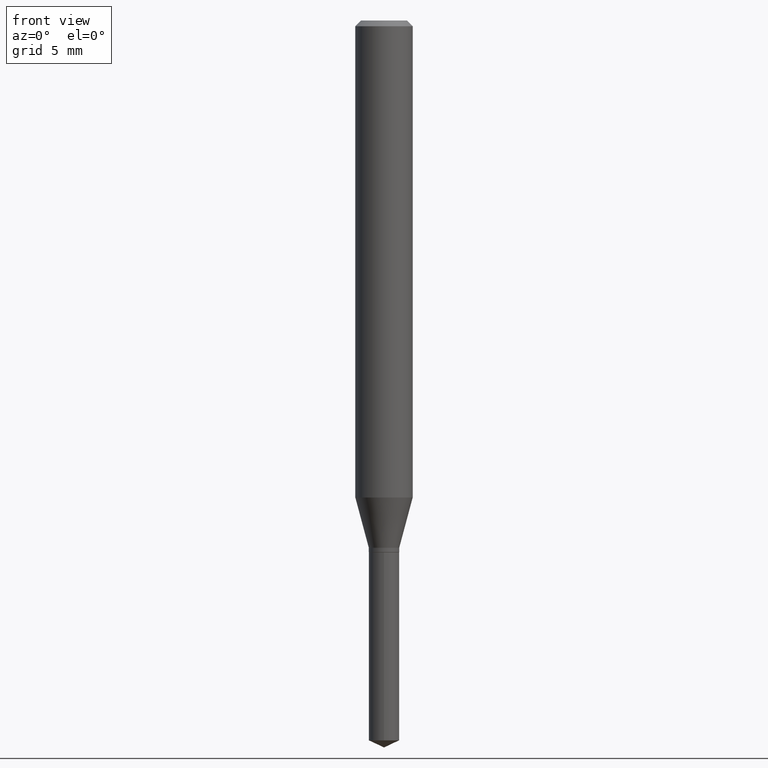
[diagram: clean part render]
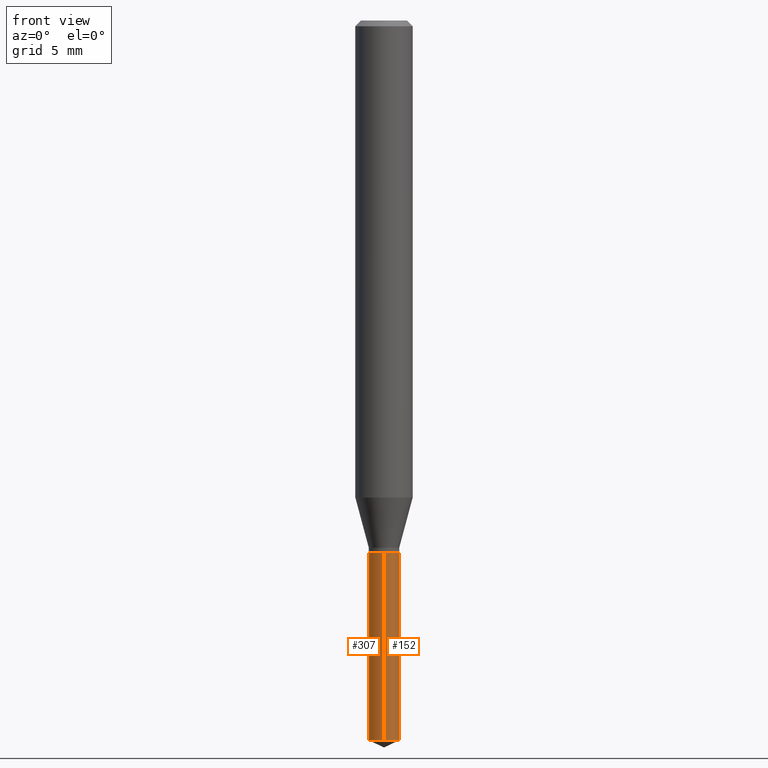
[diagram: same view with one multi-face feature highlighted, each face labeled with its STEP entity id]
A machine part, front view. The highlighted faces form ONE feature: a constant-radius fillet chain: 2 tangent blend faces with common blend radius 0.795 mm. The faces share edges in the B-rep.
Their STEP definitions:
[1] entity #152 (Cylinder):
#15 = VERTEX_POINT ( 'NONE', #207 ) ;
#28 = DIRECTION ( 'NONE',  ( -2.445470214571802116E-29, 3.491479321953280158E-15, 1.000000000000000000 ) ) ;
#43 = EDGE_CURVE ( 'NONE', #15, #472, #173, .T. ) ;
#46 = CARTESIAN_POINT ( 'NONE',  ( 3.622973757940826067E-29, -5.172644780066808928E-15, -1.481504570299748691 ) ) ;
#47 = LINE ( 'NONE', #353, #347 ) ;
#70 = CYLINDRICAL_SURFACE ( 'NONE', #264, 0.03130000000000000143 ) ;
#79 = AXIS2_PLACEMENT_3D ( 'NONE', #254, #28, #415 ) ;
#88 = VECTOR ( 'NONE', #471, 39.37007874015748143 ) ;
#114 = EDGE_LOOP ( 'NONE', ( #359, #184, #325, #322 ) ) ;
#134 = EDGE_CURVE ( 'NONE', #276, #472, #291, .T. ) ;
#148 = FACE_OUTER_BOUND ( 'NONE', #114, .T. ) ;
#152 = ADVANCED_FACE ( 'NONE', ( #148 ), #70, .T. ) ;
#155 = DIRECTION ( 'NONE',  ( -2.445470214571802116E-29, 3.491479321953280158E-15, 1.000000000000000000 ) ) ;
#166 = DIRECTION ( 'NONE',  ( -2.445470214571802396E-29, 3.491479321953280158E-15, 1.000000000000000000 ) ) ;
#173 = LINE ( 'NONE', #250, #88 ) ;
#184 = ORIENTED_EDGE ( 'NONE', *, *, #43, .T. ) ;
#188 = AXIS2_PLACEMENT_3D ( 'NONE', #46, #417, #461 ) ;
#207 = CARTESIAN_POINT ( 'NONE',  ( 2.223998762929476067E-16, 0.03129999999999482502, -1.481504570299748691 ) ) ;
#250 = CARTESIAN_POINT ( 'NONE',  ( 2.223998762929380910E-16, 0.03129999999999617810, -1.094500000000000028 ) ) ;
#254 = CARTESIAN_POINT ( 'NONE',  ( 2.676565608369631794E-29, -3.821426325363822773E-15, -1.094499999999999806 ) ) ;
#264 = AXIS2_PLACEMENT_3D ( 'NONE', #442, #155, #300 ) ;
#269 = CARTESIAN_POINT ( 'NONE',  ( 2.223998762929477053E-16, 0.03129999999999618504, -1.094500000000000028 ) ) ;
#275 = CIRCLE ( 'NONE', #188, 0.03130000000000000143 ) ;
#276 = VERTEX_POINT ( 'NONE', #422 ) ;
#291 = CIRCLE ( 'NONE', #79, 0.03130000000000000143 ) ;
#300 = DIRECTION ( 'NONE',  ( -6.982962677686265922E-15, -1.000000000000000000, 4.363974430773583610E-15 ) ) ;
#322 = ORIENTED_EDGE ( 'NONE', *, *, #413, .F. ) ;
#325 = ORIENTED_EDGE ( 'NONE', *, *, #134, .F. ) ;
#347 = VECTOR ( 'NONE', #166, 39.37007874015748143 ) ;
#353 = CARTESIAN_POINT ( 'NONE',  ( -2.185667318115533881E-16, -0.03130000000000382476, -1.094499999999999806 ) ) ;
#359 = ORIENTED_EDGE ( 'NONE', *, *, #470, .T. ) ;
#413 = EDGE_CURVE ( 'NONE', #428, #276, #47, .T. ) ;
#415 = DIRECTION ( 'NONE',  ( -6.982962677686265922E-15, -1.000000000000000000, 4.363974430773583610E-15 ) ) ;
#417 = DIRECTION ( 'NONE',  ( -2.445470214571802116E-29, 3.491479321953280158E-15, 1.000000000000000000 ) ) ;
#422 = CARTESIAN_POINT ( 'NONE',  ( -2.185667318115533881E-16, -0.03130000000000382476, -1.094499999999999806 ) ) ;
#428 = VERTEX_POINT ( 'NONE', #435 ) ;
#435 = CARTESIAN_POINT ( 'NONE',  ( -2.185667318115438971E-16, -0.03130000000000517785, -1.481504570299748691 ) ) ;
#442 = CARTESIAN_POINT ( 'NONE',  ( 2.676565608369631794E-29, -3.821426325363822773E-15, -1.094499999999999806 ) ) ;
#461 = DIRECTION ( 'NONE',  ( -6.982962677686265922E-15, -1.000000000000000000, 0.000000000000000000 ) ) ;
#470 = EDGE_CURVE ( 'NONE', #428, #15, #275, .T. ) ;
#471 = DIRECTION ( 'NONE',  ( -2.445470214571802396E-29, 3.491479321953280158E-15, 1.000000000000000000 ) ) ;
#472 = VERTEX_POINT ( 'NONE', #269 ) ;
[2] entity #307 (Cylinder):
#15 = VERTEX_POINT ( 'NONE', #207 ) ;
#19 = DIRECTION ( 'NONE',  ( -6.982962677686265922E-15, -1.000000000000000000, 4.363974430773583610E-15 ) ) ;
#31 = EDGE_CURVE ( 'NONE', #472, #276, #198, .T. ) ;
#43 = EDGE_CURVE ( 'NONE', #15, #472, #173, .T. ) ;
#47 = LINE ( 'NONE', #353, #347 ) ;
#49 = DIRECTION ( 'NONE',  ( -6.982962677686265922E-15, -1.000000000000000000, 0.000000000000000000 ) ) ;
#63 = ORIENTED_EDGE ( 'NONE', *, *, #361, .T. ) ;
#83 = CARTESIAN_POINT ( 'NONE',  ( 3.622973757940826067E-29, -5.172644780066808928E-15, -1.481504570299748691 ) ) ;
#88 = VECTOR ( 'NONE', #471, 39.37007874015748143 ) ;
#138 = DIRECTION ( 'NONE',  ( -2.445470214571802116E-29, 3.491479321953280158E-15, 1.000000000000000000 ) ) ;
#139 = EDGE_LOOP ( 'NONE', ( #215, #63, #229, #443 ) ) ;
#164 = AXIS2_PLACEMENT_3D ( 'NONE', #348, #274, #459 ) ;
#166 = DIRECTION ( 'NONE',  ( -2.445470214571802396E-29, 3.491479321953280158E-15, 1.000000000000000000 ) ) ;
#173 = LINE ( 'NONE', #250, #88 ) ;
#198 = CIRCLE ( 'NONE', #406, 0.03130000000000000143 ) ;
#207 = CARTESIAN_POINT ( 'NONE',  ( 2.223998762929476067E-16, 0.03129999999999482502, -1.481504570299748691 ) ) ;
#210 = CARTESIAN_POINT ( 'NONE',  ( 2.676565608369631794E-29, -3.821426325363822773E-15, -1.094499999999999806 ) ) ;
#215 = ORIENTED_EDGE ( 'NONE', *, *, #43, .F. ) ;
#229 = ORIENTED_EDGE ( 'NONE', *, *, #413, .T. ) ;
#250 = CARTESIAN_POINT ( 'NONE',  ( 2.223998762929380910E-16, 0.03129999999999617810, -1.094500000000000028 ) ) ;
#257 = AXIS2_PLACEMENT_3D ( 'NONE', #83, #383, #49 ) ;
#269 = CARTESIAN_POINT ( 'NONE',  ( 2.223998762929477053E-16, 0.03129999999999618504, -1.094500000000000028 ) ) ;
#274 = DIRECTION ( 'NONE',  ( -2.445470214571802116E-29, 3.491479321953280158E-15, 1.000000000000000000 ) ) ;
#276 = VERTEX_POINT ( 'NONE', #422 ) ;
#292 = CIRCLE ( 'NONE', #257, 0.03130000000000000143 ) ;
#307 = ADVANCED_FACE ( 'NONE', ( #314 ), #351, .T. ) ;
#314 = FACE_OUTER_BOUND ( 'NONE', #139, .T. ) ;
#347 = VECTOR ( 'NONE', #166, 39.37007874015748143 ) ;
#348 = CARTESIAN_POINT ( 'NONE',  ( 2.676565608369631794E-29, -3.821426325363822773E-15, -1.094499999999999806 ) ) ;
#351 = CYLINDRICAL_SURFACE ( 'NONE', #164, 0.03130000000000000143 ) ;
#353 = CARTESIAN_POINT ( 'NONE',  ( -2.185667318115533881E-16, -0.03130000000000382476, -1.094499999999999806 ) ) ;
#361 = EDGE_CURVE ( 'NONE', #15, #428, #292, .T. ) ;
#383 = DIRECTION ( 'NONE',  ( -2.445470214571802116E-29, 3.491479321953280158E-15, 1.000000000000000000 ) ) ;
#406 = AXIS2_PLACEMENT_3D ( 'NONE', #210, #138, #19 ) ;
#413 = EDGE_CURVE ( 'NONE', #428, #276, #47, .T. ) ;
#422 = CARTESIAN_POINT ( 'NONE',  ( -2.185667318115533881E-16, -0.03130000000000382476, -1.094499999999999806 ) ) ;
#428 = VERTEX_POINT ( 'NONE', #435 ) ;
#435 = CARTESIAN_POINT ( 'NONE',  ( -2.185667318115438971E-16, -0.03130000000000517785, -1.481504570299748691 ) ) ;
#443 = ORIENTED_EDGE ( 'NONE', *, *, #31, .F. ) ;
#459 = DIRECTION ( 'NONE',  ( -6.982962677686265922E-15, -1.000000000000000000, 4.363974430773583610E-15 ) ) ;
#471 = DIRECTION ( 'NONE',  ( -2.445470214571802396E-29, 3.491479321953280158E-15, 1.000000000000000000 ) ) ;
#472 = VERTEX_POINT ( 'NONE', #269 ) ;